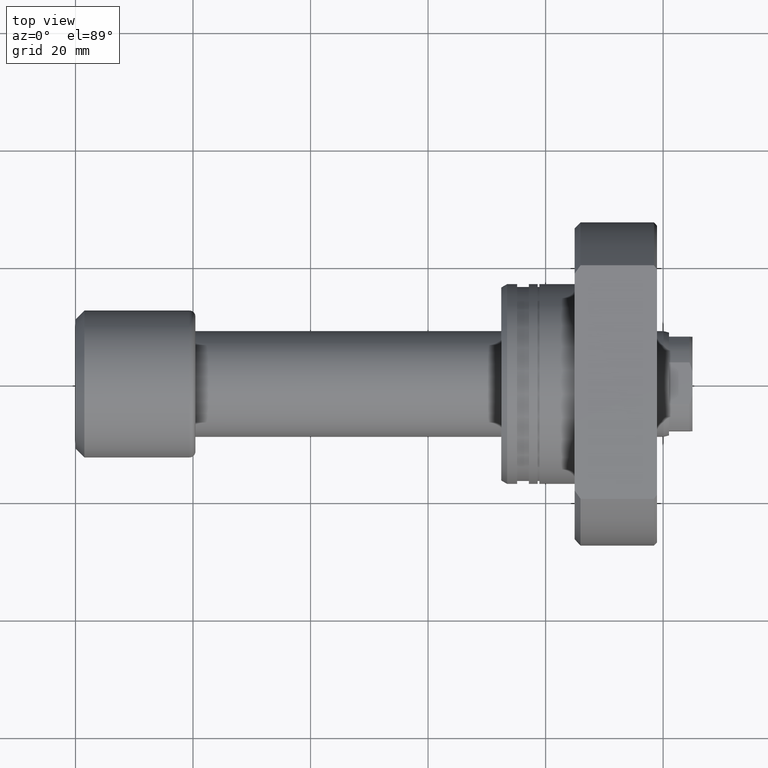
[diagram: clean part render]
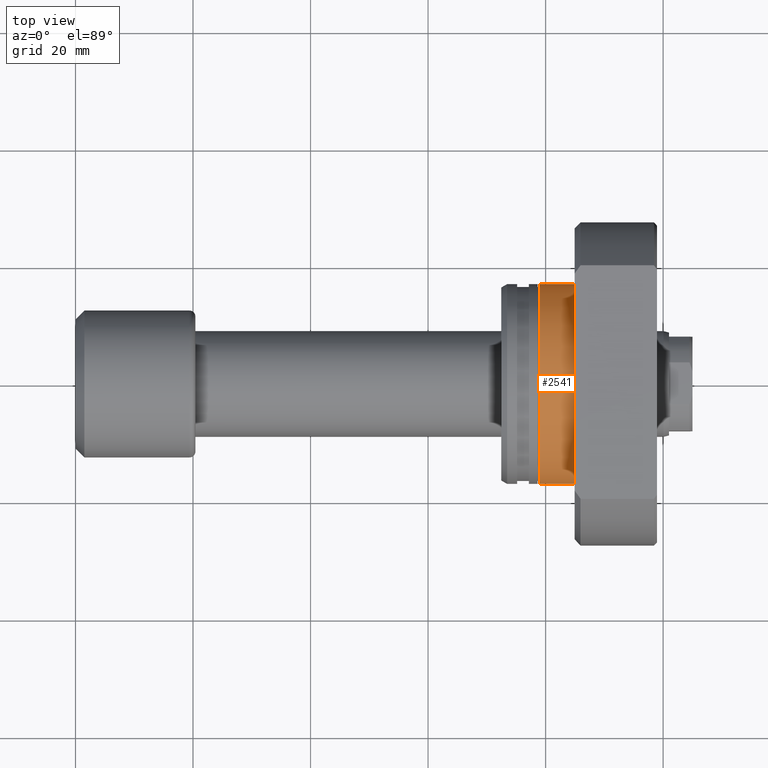
[diagram: same view with one face highlighted and labeled with its STEP entity id]
A machine part, top view. The second image highlights one B-rep face of the part: STEP entity #2541.
In plain terms, the highlighted cylindrical surface (partial cylindrical patch) has radius 17 mm, axis along (1, 0, 0).
Its self-contained STEP definition (entity closure, byte-faithful):
#1 = CARTESIAN_POINT ( 'NONE',  ( 6.499999999999783284, 16.99999999999999645, 0.000000000000000000 ) ) ;
#177 = CARTESIAN_POINT ( 'NONE',  ( 6.499999999999783284, 6.007701278835876331E-17, 0.000000000000000000 ) ) ;
#241 = CIRCLE ( 'NONE', #2050, 16.99999999999999645 ) ;
#254 = AXIS2_PLACEMENT_3D ( 'NONE', #2123, #2837, #419 ) ;
#373 = CARTESIAN_POINT ( 'NONE',  ( 26.50000000000000711, -16.99999999999999645, 2.081899558550499885E-15 ) ) ;
#383 = ORIENTED_EDGE ( 'NONE', *, *, #581, .T. ) ;
#387 = VERTEX_POINT ( 'NONE', #1 ) ;
#419 = DIRECTION ( 'NONE',  ( 0.000000000000000000, 1.000000000000000000, 0.000000000000000000 ) ) ;
#548 = VECTOR ( 'NONE', #3102, 1000.000000000000000 ) ;
#581 = EDGE_CURVE ( 'NONE', #1628, #732, #2813, .T. ) ;
#728 = DIRECTION ( 'NONE',  ( 1.000000000000000000, 9.242617352055502386E-18, -0.000000000000000000 ) ) ;
#732 = VERTEX_POINT ( 'NONE', #2407 ) ;
#869 = ORIENTED_EDGE ( 'NONE', *, *, #3196, .F. ) ;
#871 = CARTESIAN_POINT ( 'NONE',  ( 26.50000000000000711, 16.99999999999999645, 0.000000000000000000 ) ) ;
#1126 = DIRECTION ( 'NONE',  ( 1.000000000000000000, 9.242617352055502386E-18, -0.000000000000000000 ) ) ;
#1211 = ORIENTED_EDGE ( 'NONE', *, *, #1660, .F. ) ;
#1219 = EDGE_CURVE ( 'NONE', #387, #1628, #241, .T. ) ;
#1226 = CARTESIAN_POINT ( 'NONE',  ( 12.50000000000000178, 1.155327169006937960E-16, 0.000000000000000000 ) ) ;
#1412 = DIRECTION ( 'NONE',  ( 1.000000000000000000, 9.242617352055502386E-18, -0.000000000000000000 ) ) ;
#1566 = CARTESIAN_POINT ( 'NONE',  ( 6.499999999999783284, -16.99999999999999645, 2.081899558550499885E-15 ) ) ;
#1628 = VERTEX_POINT ( 'NONE', #1566 ) ;
#1660 = EDGE_CURVE ( 'NONE', #387, #2910, #2350, .T. ) ;
#1771 = DIRECTION ( 'NONE',  ( 0.000000000000000000, 1.000000000000000000, 0.000000000000000000 ) ) ;
#1819 = CYLINDRICAL_SURFACE ( 'NONE', #254, 16.99999999999999645 ) ;
#1840 = ORIENTED_EDGE ( 'NONE', *, *, #1219, .T. ) ;
#2050 = AXIS2_PLACEMENT_3D ( 'NONE', #177, #1412, #2367 ) ;
#2123 = CARTESIAN_POINT ( 'NONE',  ( 26.50000000000000711, 2.449293598294708880E-16, 0.000000000000000000 ) ) ;
#2280 = CIRCLE ( 'NONE', #2959, 16.99999999999999645 ) ;
#2350 = LINE ( 'NONE', #871, #2946 ) ;
#2366 = FACE_OUTER_BOUND ( 'NONE', #2761, .T. ) ;
#2367 = DIRECTION ( 'NONE',  ( 0.000000000000000000, 1.000000000000000000, 0.000000000000000000 ) ) ;
#2407 = CARTESIAN_POINT ( 'NONE',  ( 12.50000000000000178, -16.99999999999999645, 2.081899558550499885E-15 ) ) ;
#2541 = ADVANCED_FACE ( 'NONE', ( #2366 ), #1819, .T. ) ;
#2761 = EDGE_LOOP ( 'NONE', ( #1840, #383, #869, #1211 ) ) ;
#2771 = CARTESIAN_POINT ( 'NONE',  ( 12.50000000000000178, 16.99999999999999645, 0.000000000000000000 ) ) ;
#2813 = LINE ( 'NONE', #373, #548 ) ;
#2837 = DIRECTION ( 'NONE',  ( 1.000000000000000000, 9.242617352055502386E-18, -0.000000000000000000 ) ) ;
#2910 = VERTEX_POINT ( 'NONE', #2771 ) ;
#2946 = VECTOR ( 'NONE', #1126, 1000.000000000000000 ) ;
#2959 = AXIS2_PLACEMENT_3D ( 'NONE', #1226, #728, #1771 ) ;
#3102 = DIRECTION ( 'NONE',  ( 1.000000000000000000, 9.242617352055502386E-18, -0.000000000000000000 ) ) ;
#3196 = EDGE_CURVE ( 'NONE', #2910, #732, #2280, .T. ) ;